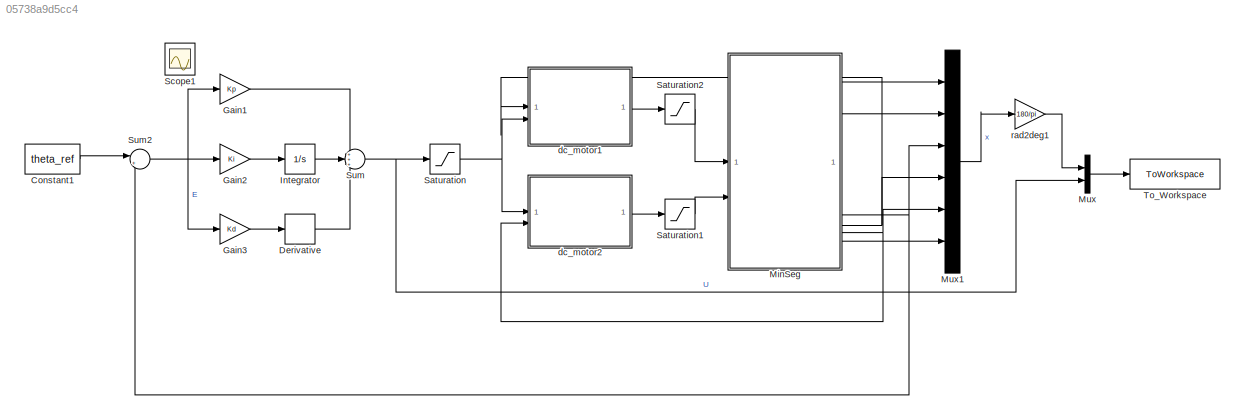
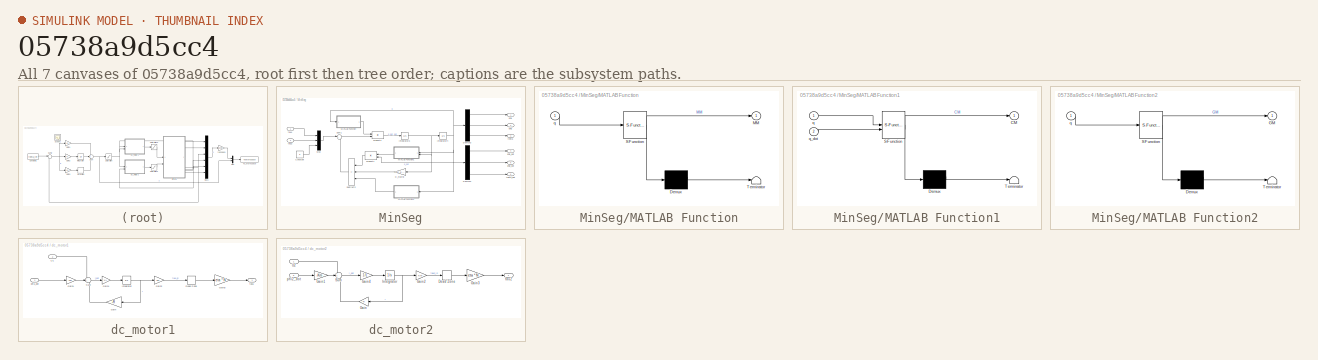
[diagram: thumbnail index - all 7 canvases of the model, root first then tree order]
MODEL slx_05738a9d5cc4
KIND model
CONFIG AbsTol = auto
CONFIG EnableMultiTasking = off
CONFIG FixedStep = 0.00001
CONFIG MaxStep = auto
CONFIG MinStep = auto
CONFIG RelTol = 1e-3
CONFIG SampleTimeConstraint = Unconstrained
CONFIG SolverName = ode4
CONFIG StartTime = 0.0
CONFIG StopTime = 4
BLOCK [Constant] Constant1
  Value = theta_ref
BLOCK [Derivative] Derivative
BLOCK [Gain] Gain1
  Gain = Kp
BLOCK [Gain] Gain2
  Gain = Ki
BLOCK [Gain] Gain3
  Gain = Kd
BLOCK [Integrator] Integrator
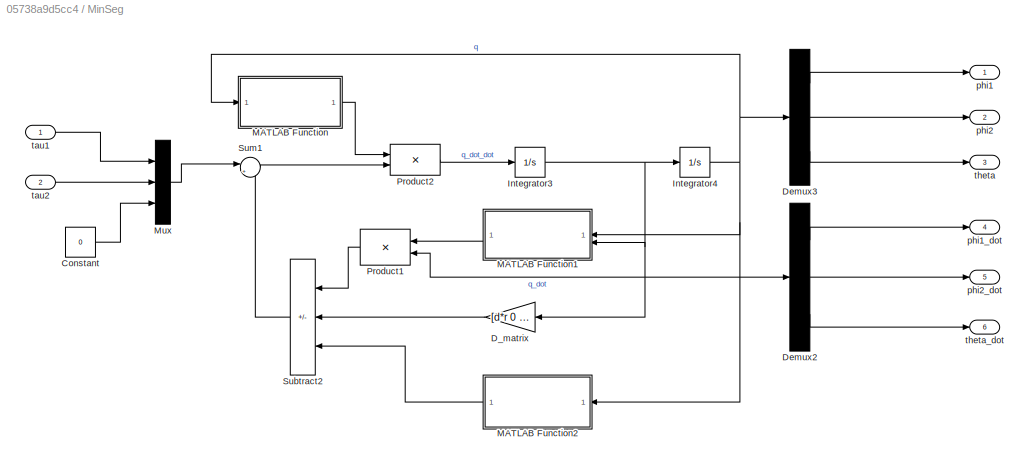
BLOCK [SubSystem] MinSeg
BLOCK [Constant] MinSeg/Constant
  Value = 0
BLOCK [Gain] MinSeg/D_matrix
  Gain = [d*r 0 0; 0 d*r 0; 0 0 c]
  Multiplication = Matrix(K*u)
BLOCK [Demux] MinSeg/Demux2
  Outputs = 3
BLOCK [Demux] MinSeg/Demux3
  Outputs = 3
BLOCK [Integrator] MinSeg/Integrator3
  InitialCondition = init_dq
BLOCK [Integrator] MinSeg/Integrator4
  InitialCondition = init_q
BLOCK [SubSystem] MinSeg/MATLAB Function
  ErrorFcn = Stateflow.Translate.translate
  PermitHierarchicalResolution = ExplicitOnly
  SFBlockType = MATLAB Function
  TreatAsAtomicUnit = on
BLOCK [Demux] MinSeg/MATLAB Function/ Demux 
  Outputs = 1
BLOCK [S-Function] MinSeg/MATLAB Function/ SFunction 
  EnableBusSupport = on
  FunctionName = sf_sfun
  Parameters = I,J,M,l,m,r
  PortCounts = [1 2]
  SFcnIsStateOwnerBlock = off
  SFunctionDeploymentMode = off
  Tag = Stateflow S-Function 2
BLOCK [Terminator] MinSeg/MATLAB Function/ Terminator 
BLOCK [Outport] MinSeg/MATLAB Function/MM
BLOCK [Inport] MinSeg/MATLAB Function/q
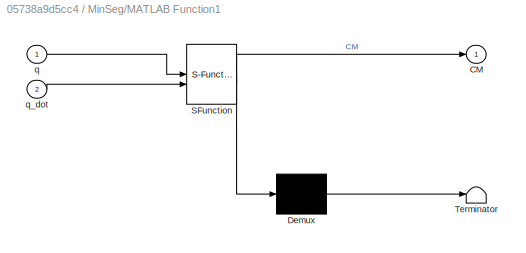
BLOCK [SubSystem] MinSeg/MATLAB Function1
  ErrorFcn = Stateflow.Translate.translate
  NameLocation = top
  PermitHierarchicalResolution = ExplicitOnly
  SFBlockType = MATLAB Function
  TreatAsAtomicUnit = on
BLOCK [Demux] MinSeg/MATLAB Function1/ Demux 
  Outputs = 1
BLOCK [S-Function] MinSeg/MATLAB Function1/ SFunction 
  EnableBusSupport = on
  FunctionName = sf_sfun
  Parameters = M,l,r
  PortCounts = [2 2]
  SFcnIsStateOwnerBlock = off
  SFunctionDeploymentMode = off
  Tag = Stateflow S-Function 1
BLOCK [Terminator] MinSeg/MATLAB Function1/ Terminator 
BLOCK [Outport] MinSeg/MATLAB Function1/CM
BLOCK [Inport] MinSeg/MATLAB Function1/q
BLOCK [Inport] MinSeg/MATLAB Function1/q_dot
  Port = 2
BLOCK [SubSystem] MinSeg/MATLAB Function2
  ErrorFcn = Stateflow.Translate.translate
  NameLocation = top
  PermitHierarchicalResolution = ExplicitOnly
  SFBlockType = MATLAB Function
  TreatAsAtomicUnit = on
BLOCK [Demux] MinSeg/MATLAB Function2/ Demux 
  Outputs = 1
BLOCK [S-Function] MinSeg/MATLAB Function2/ SFunction 
  EnableBusSupport = on
  FunctionName = sf_sfun
  Parameters = M,g,l
  PortCounts = [1 2]
  SFcnIsStateOwnerBlock = off
  SFunctionDeploymentMode = off
  Tag = Stateflow S-Function 3
BLOCK [Terminator] MinSeg/MATLAB Function2/ Terminator 
BLOCK [Outport] MinSeg/MATLAB Function2/GM
BLOCK [Inport] MinSeg/MATLAB Function2/q
BLOCK [Mux] MinSeg/Mux
  DisplayOption = bar
  Inputs = 3
BLOCK [Product] MinSeg/Product1
  Multiplication = Matrix(*)
  NameLocation = top
BLOCK [Product] MinSeg/Product2
  Inputs = /*
  Multiplication = Matrix(*)
BLOCK [Sum] MinSeg/Subtract2
  IconShape = rectangular
  Inputs = ---
  NameLocation = top
BLOCK [Sum] MinSeg/Sum1
  Inputs = |++
BLOCK [Outport] MinSeg/phi1
BLOCK [Outport] MinSeg/phi1_dot
  Port = 4
BLOCK [Outport] MinSeg/phi2
  Port = 2
BLOCK [Outport] MinSeg/phi2_dot
  Port = 5
BLOCK [Inport] MinSeg/tau1
BLOCK [Inport] MinSeg/tau2
  Port = 2
BLOCK [Outport] MinSeg/theta
  Port = 3
BLOCK [Outport] MinSeg/theta_dot
  Port = 6
BLOCK [Mux] Mux
  DisplayOption = bar
  Inputs = 2
BLOCK [Mux] Mux1
  DisplayOption = bar
  Inputs = 6
BLOCK [Saturate] Saturation
  LowerLimit = -U_max
  UpperLimit = U_max
BLOCK [Saturate] Saturation1
  LowerLimit = -tau_max
  UpperLimit = tau_max
BLOCK [Saturate] Saturation2
  LowerLimit = -tau_max
  UpperLimit = tau_max
BLOCK [Scope] Scope1
  Floating = off
  IOType = viewer
  NumInputPorts = 1
  ScopeSpecificationString = Simulink.scopes.TimeScopeBlockCfg('CurrentConfiguration', extmgr.ConfigurationSet(extmgr.Configuration('Core','General UI',true),extmgr.Configuration('Core','Source UI',true),extmgr.Configuration('Sources','WiredSimulink',true,'DataLoggingVariableName','ScopeData1'),extmgr.Configuration('Visuals','Time Domain',true,'SerializedDisplays',{struct('MinYLimReal','0.9','MaxYLimReal','1.1','YLabelReal','...<+1414ch>
BLOCK [Sum] Sum
  Inputs = +++
BLOCK [Sum] Sum2
  Inputs = |+-
BLOCK [ToWorkspace] To_Workspace
  FixptAsFi = on
  MaxDataPoints = inf
  SampleTime = -1
  SaveFormat = Timeseries
  VariableName = y1
BLOCK [SubSystem] dc_motor1
BLOCK [DeadZone] dc_motor1/Dead Zone
  LowerValue = -tau_m
  UpperValue = tau_m
BLOCK [Gain] dc_motor1/Gain
  Gain = -R
  NameLocation = top
BLOCK [Gain] dc_motor1/Gain1
  Gain = -Km
BLOCK [Gain] dc_motor1/Gain2
  Gain = Km
BLOCK [Gain] dc_motor1/Gain3
  Gain = eta * N
BLOCK [Gain] dc_motor1/Gain4
  Gain = 1/L
BLOCK [Integrator] dc_motor1/Integrator
BLOCK [Sum] dc_motor1/Sum
  Inputs = +++
BLOCK [Inport] dc_motor1/U1
  Port = 2
BLOCK [Inport] dc_motor1/phi1_dot
BLOCK [Outport] dc_motor1/tau1
BLOCK [SubSystem] dc_motor2
BLOCK [DeadZone] dc_motor2/Dead Zone
  LowerValue = -tau_m
  UpperValue = tau_m
BLOCK [Gain] dc_motor2/Gain
  Gain = -R
  NameLocation = top
BLOCK [Gain] dc_motor2/Gain1
  Gain = -Km
BLOCK [Gain] dc_motor2/Gain2
  Gain = Km
BLOCK [Gain] dc_motor2/Gain3
  Gain = eta * N
BLOCK [Gain] dc_motor2/Gain4
  Gain = 1/L
BLOCK [Integrator] dc_motor2/Integrator
BLOCK [Sum] dc_motor2/Sum
  Inputs = +++
BLOCK [Inport] dc_motor2/U2
BLOCK [Inport] dc_motor2/phi2_dot
  Port = 2
BLOCK [Outport] dc_motor2/tau2
BLOCK [Gain] rad2deg1
  Gain = 180/pi
LINE Constant1:1 -> Sum2:1
LINE Derivative:1 -> Sum:3
LINE Gain1:1 -> Sum:1
LINE Gain2:1 -> Integrator:1
LINE Gain3:1 -> Derivative:1
LINE Integrator:1 -> Sum:2
LINE MinSeg/Constant:1 -> MinSeg/Mux:3
LINE MinSeg/D_matrix:1 -> MinSeg/Subtract2:2
LINE MinSeg/Demux2:1 -> MinSeg/phi1_dot:1
LINE MinSeg/Demux2:2 -> MinSeg/phi2_dot:1
LINE MinSeg/Demux2:3 -> MinSeg/theta_dot:1
LINE MinSeg/Demux3:1 -> MinSeg/phi1:1
LINE MinSeg/Demux3:2 -> MinSeg/phi2:1
LINE MinSeg/Demux3:3 -> MinSeg/theta:1
NET MinSeg/Integrator3:1 -> MinSeg/D_matrix:1, MinSeg/Demux2:1, MinSeg/Integrator4:1, MinSeg/MATLAB Function1:2, MinSeg/Product1:2
NET MinSeg/Integrator4:1 -> MinSeg/Demux3:1, MinSeg/MATLAB Function1:1, MinSeg/MATLAB Function2:1, MinSeg/MATLAB Function:1
LINE MinSeg/MATLAB Function1:1 -> MinSeg/Product1:1
LINE MinSeg/MATLAB Function2:1 -> MinSeg/Subtract2:3
LINE MinSeg/MATLAB Function:1 -> MinSeg/Product2:1
LINE MinSeg/Mux:1 -> MinSeg/Sum1:1
LINE MinSeg/Product1:1 -> MinSeg/Subtract2:1
LINE MinSeg/Product2:1 -> MinSeg/Integrator3:1
LINE MinSeg/Subtract2:1 -> MinSeg/Sum1:2
LINE MinSeg/Sum1:1 -> MinSeg/Product2:2
LINE MinSeg/tau1:1 -> MinSeg/Mux:1
LINE MinSeg/tau2:1 -> MinSeg/Mux:2
LINE MinSeg:1 -> Mux1:1
LINE MinSeg:2 -> Mux1:2
NET MinSeg:3 -> Mux1:3, Sum2:2
NET MinSeg:4 -> Mux1:4, dc_motor1:1
NET MinSeg:5 -> Mux1:5, dc_motor2:2
LINE MinSeg:6 -> Mux1:6
LINE Mux1:1 -> rad2deg1:1
LINE Mux:1 -> To_Workspace:1
LINE Saturation1:1 -> MinSeg:2
LINE Saturation2:1 -> MinSeg:1
NET Saturation:1 -> dc_motor1:2, dc_motor2:1
NET Sum2:1 -> Gain1:1, Gain2:1, Gain3:1
NET Sum:1 -> Mux:2, Saturation:1
LINE dc_motor1/Dead Zone:1 -> dc_motor1/Gain3:1
LINE dc_motor1/Gain1:1 -> dc_motor1/Sum:2
LINE dc_motor1/Gain2:1 -> dc_motor1/Dead Zone:1
LINE dc_motor1/Gain3:1 -> dc_motor1/tau1:1
LINE dc_motor1/Gain4:1 -> dc_motor1/Integrator:1
LINE dc_motor1/Gain:1 -> dc_motor1/Sum:3
NET dc_motor1/Integrator:1 -> dc_motor1/Gain2:1, dc_motor1/Gain:1
LINE dc_motor1/Sum:1 -> dc_motor1/Gain4:1
LINE dc_motor1/U1:1 -> dc_motor1/Sum:1
LINE dc_motor1/phi1_dot:1 -> dc_motor1/Gain1:1
LINE dc_motor1:1 -> Saturation2:1
LINE dc_motor2/Dead Zone:1 -> dc_motor2/Gain3:1
LINE dc_motor2/Gain1:1 -> dc_motor2/Sum:2
LINE dc_motor2/Gain2:1 -> dc_motor2/Dead Zone:1
LINE dc_motor2/Gain3:1 -> dc_motor2/tau2:1
LINE dc_motor2/Gain4:1 -> dc_motor2/Integrator:1
LINE dc_motor2/Gain:1 -> dc_motor2/Sum:3
NET dc_motor2/Integrator:1 -> dc_motor2/Gain2:1, dc_motor2/Gain:1
LINE dc_motor2/Sum:1 -> dc_motor2/Gain4:1
LINE dc_motor2/U2:1 -> dc_motor2/Sum:1
LINE dc_motor2/phi2_dot:1 -> dc_motor2/Gain1:1
LINE dc_motor2:1 -> Saturation1:1
LINE rad2deg1:1 -> Mux:1
note: NET lines group one-source signal fan-out (src -> all destinations, sorted); 1:1 wires keep LINE
CHART MinSeg/MATLAB Function1 states=1 transitions=1
  STATE_LABEL 'eML_blk_kernel()'
  STATE_LABEL 'SCRIPT:\nfunction CM = C_matrix(q, q_dot, r, M, l)\n    % initialize\n    CM = zeros(3,3);\n\n    % extract variables \n    theta = q(3);\n    theta_dot = q_dot(3);\n\n    % Calculate the elements of the C(q, q_dot) matrix\n    CM(1,3) = -1/2*M*l*r*theta_dot*sin(theta);\n    CM(2,3) = -1/2*M*l*r*theta_dot*sin(theta);\n    CM(3,3) = -M*l*r*theta_dot*sin(theta);\nend'
CHART MinSeg/MATLAB Function states=1 transitions=1
  STATE_LABEL 'eML_blk_kernel()'
  STATE_LABEL 'SCRIPT:\nfunction MM = M_matrix(q, r, m, M, l, I, J)\n    % initialize\n    MM = zeros(3,3);\n    \n    % extract theta from q\n    theta = q(3);\n\n    % Calculate the elements of the M(q) matrix\n    MM(1,1) = r^2*(1/4*M + m) + J;\n    MM(1,2) = 1/4*M*r^2;\n    MM(1,3) = r^2*(1/2*M + m) + J + 1/2*M*l*r*cos(theta);\n    MM(2,1) = 1/4*M*r^2;\n    MM(2,2) = r^2*(1/4*M + m) + J;\n    MM(2,3) = r^2*(1/2*M + m) + J...<+212ch>'
CHART MinSeg/MATLAB Function2 states=1 transitions=1
  STATE_LABEL 'eML_blk_kernel()'
  STATE_LABEL 'SCRIPT:\nfunction GM = G_matrix(q, g, M, l)\n    % extract theta from q\n    theta = q(3);\n\n    % Calculate the elements of the G(q) matrix\n    GM = [0; 0; -M*g*l*sin(theta)];\nend'
CHART  states=0 transitions=0
CHART  states=0 transitions=0
CHART  states=0 transitions=0
